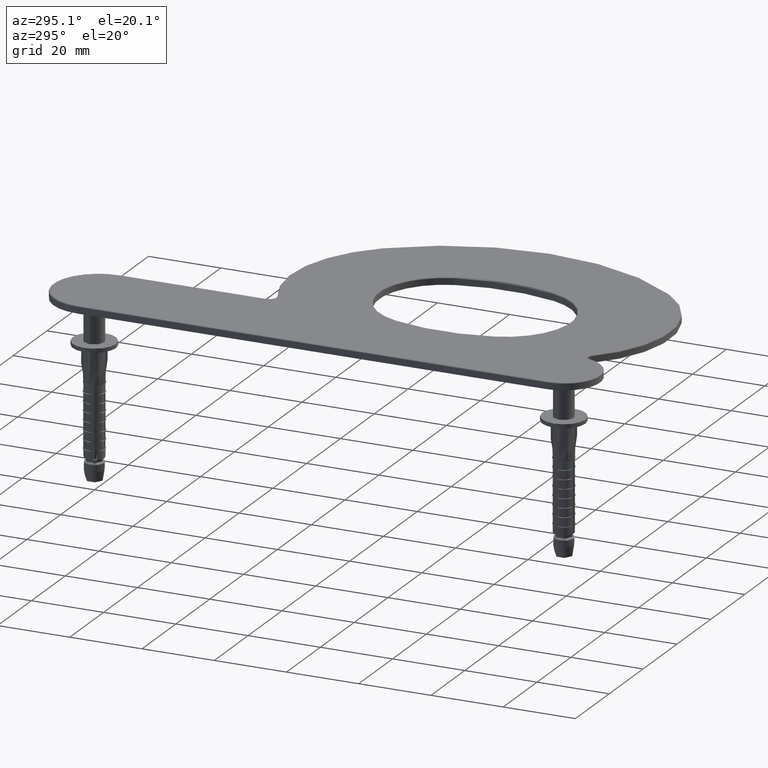
[diagram: clean part render]
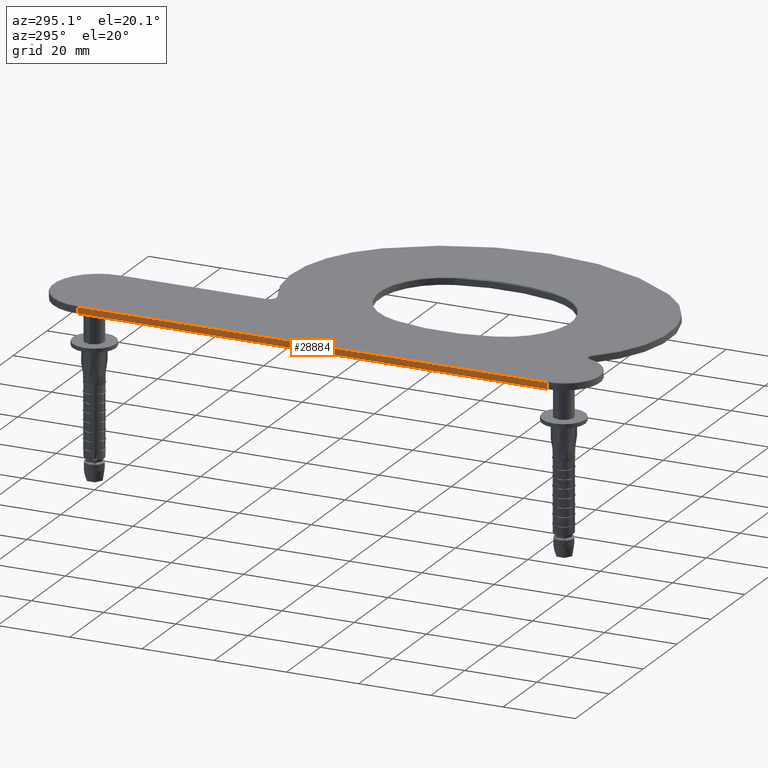
[diagram: same view with one face highlighted and labeled with its STEP entity id]
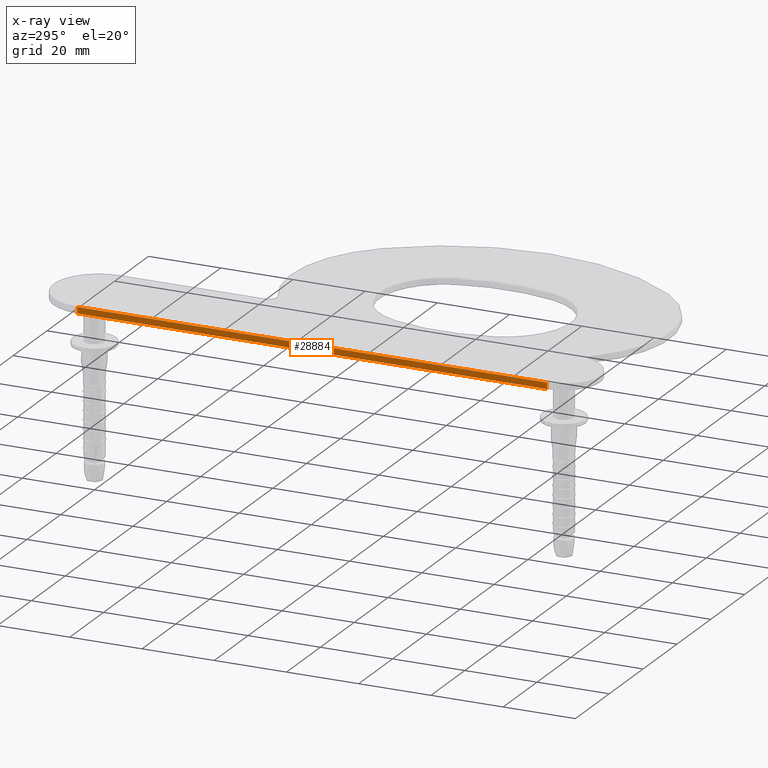
[diagram: x-ray of the same camera — body ghosted, the highlighted face saturated]
A machine part, auxiliary view. The second image highlights one B-rep face of the part: STEP entity #28884.
The next image is the same camera in x-ray: the body ghosted, the highlighted face saturated — about 0% of this face is hidden behind the body in this view.
In plain terms, the highlighted planar face has unit normal (1, 0, 0).
Its self-contained STEP definition (entity closure, byte-faithful):
#1001 = CARTESIAN_POINT ( 'NONE',  ( -10.00000000000001776, 140.0300000000000296, 1.750000000000000000 ) ) ;
#1761 = DIRECTION ( 'NONE',  ( 1.334094805796206308E-16, -1.000000000000000000, 0.000000000000000000 ) ) ;
#3639 = LINE ( 'NONE', #24639, #27094 ) ;
#4400 = EDGE_CURVE ( 'NONE', #21698, #36191, #3639, .T. ) ;
#4543 = CARTESIAN_POINT ( 'NONE',  ( -10.00000000000001776, 140.0300000000000296, 0.000000000000000000 ) ) ;
#4882 = DIRECTION ( 'NONE',  ( -0.000000000000000000, -0.000000000000000000, -1.000000000000000000 ) ) ;
#7948 = ORIENTED_EDGE ( 'NONE', *, *, #28019, .T. ) ;
#8779 = LINE ( 'NONE', #17149, #36510 ) ;
#11626 = PLANE ( 'NONE',  #35926 ) ;
#11777 = VERTEX_POINT ( 'NONE', #13733 ) ;
#13733 = CARTESIAN_POINT ( 'NONE',  ( -10.00000000000000000, 9.999999999999998224, 0.000000000000000000 ) ) ;
#14062 = LINE ( 'NONE', #29032, #21239 ) ;
#14319 = ORIENTED_EDGE ( 'NONE', *, *, #28461, .F. ) ;
#17149 = CARTESIAN_POINT ( 'NONE',  ( -9.999999999999998224, -1.334094805796206061E-15, 0.000000000000000000 ) ) ;
#17935 = DIRECTION ( 'NONE',  ( -1.334094805796206308E-16, 1.000000000000000000, 0.000000000000000000 ) ) ;
#20159 = CARTESIAN_POINT ( 'NONE',  ( -10.00000000000000000, 9.999999999999998224, 2.000000000000000000 ) ) ;
#21194 = ORIENTED_EDGE ( 'NONE', *, *, #4400, .T. ) ;
#21239 = VECTOR ( 'NONE', #31956, 1000.000000000000000 ) ;
#21696 = LINE ( 'NONE', #20159, #32190 ) ;
#21698 = VERTEX_POINT ( 'NONE', #38071 ) ;
#23411 = VERTEX_POINT ( 'NONE', #4543 ) ;
#24639 = CARTESIAN_POINT ( 'NONE',  ( -10.00000000000001776, 140.0300000000000296, 1.750000000000000000 ) ) ;
#25980 = FACE_OUTER_BOUND ( 'NONE', #29363, .T. ) ;
#27094 = VECTOR ( 'NONE', #31062, 1000.000000000000000 ) ;
#28019 = EDGE_CURVE ( 'NONE', #36191, #23411, #14062, .T. ) ;
#28461 = EDGE_CURVE ( 'NONE', #21698, #11777, #21696, .T. ) ;
#28884 = ADVANCED_FACE ( 'NONE', ( #25980 ), #11626, .F. ) ;
#29032 = CARTESIAN_POINT ( 'NONE',  ( -10.00000000000001776, 140.0300000000000296, 2.000000000000000000 ) ) ;
#29363 = EDGE_LOOP ( 'NONE', ( #14319, #21194, #7948, #39041 ) ) ;
#29598 = EDGE_CURVE ( 'NONE', #23411, #11777, #8779, .T. ) ;
#31062 = DIRECTION ( 'NONE',  ( -1.334094805796206308E-16, 1.000000000000000000, -0.000000000000000000 ) ) ;
#31956 = DIRECTION ( 'NONE',  ( -0.000000000000000000, -0.000000000000000000, -1.000000000000000000 ) ) ;
#32190 = VECTOR ( 'NONE', #4882, 1000.000000000000000 ) ;
#33116 = DIRECTION ( 'NONE',  ( 1.000000000000000000, 1.334094805796206308E-16, -0.000000000000000000 ) ) ;
#35926 = AXIS2_PLACEMENT_3D ( 'NONE', #36035, #33116, #17935 ) ;
#36035 = CARTESIAN_POINT ( 'NONE',  ( -9.999999999999998224, -1.334094805796206061E-15, 2.000000000000000000 ) ) ;
#36191 = VERTEX_POINT ( 'NONE', #1001 ) ;
#36510 = VECTOR ( 'NONE', #1761, 1000.000000000000000 ) ;
#38071 = CARTESIAN_POINT ( 'NONE',  ( -10.00000000000000000, 9.999999999999998224, 1.750000000000000000 ) ) ;
#39041 = ORIENTED_EDGE ( 'NONE', *, *, #29598, .T. ) ;